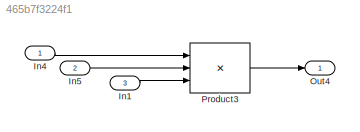
MODEL slx_465b7f3224f1
KIND model
CONFIG AbsTol = auto
CONFIG EnableMultiTasking = on
CONFIG FixedStep = 0.1
CONFIG MaxStep = auto
CONFIG MinStep = auto
CONFIG RelTol = 1e-3
CONFIG SampleTimeConstraint = Unconstrained
CONFIG Solver = FixedStepAuto
CONFIG SolverName = FixedStepAuto
CONFIG StartTime = 0.0
CONFIG StopTime = 10.0
BLOCK [Inport] In1
  IconDisplay = Port number
  Port = 3
  PortDimensions = [2 1]
BLOCK [Inport] In4
  IconDisplay = Port number
  PortDimensions = [2 3]
BLOCK [Inport] In5
  IconDisplay = Port number
  Port = 2
  PortDimensions = [3 2]
BLOCK [Outport] Out4
  IconDisplay = Port number
BLOCK [Product] Product3
  InputSameDT = off
  Inputs = ***
  Multiplication = Matrix(*)
  OutDataTypeStr = Inherit: Inherit via internal rule
  Ports = [3, 1]
  SaturateOnIntegerOverflow = off
LINE In1:1 -> Product3:3
LINE In4:1 -> Product3:1
LINE In5:1 -> Product3:2
LINE Product3:1 -> Out4:1
